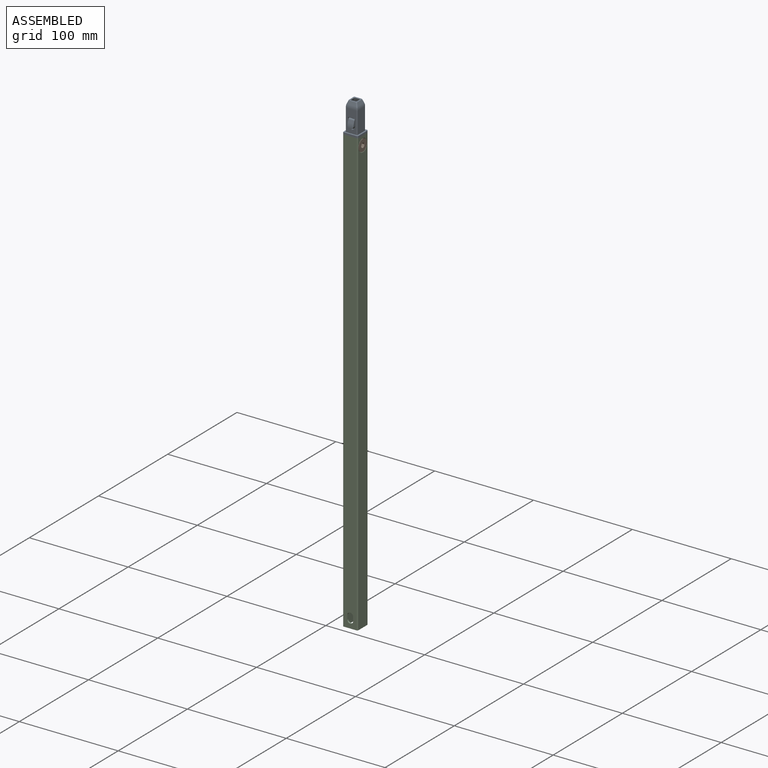
[diagram: assembled view]
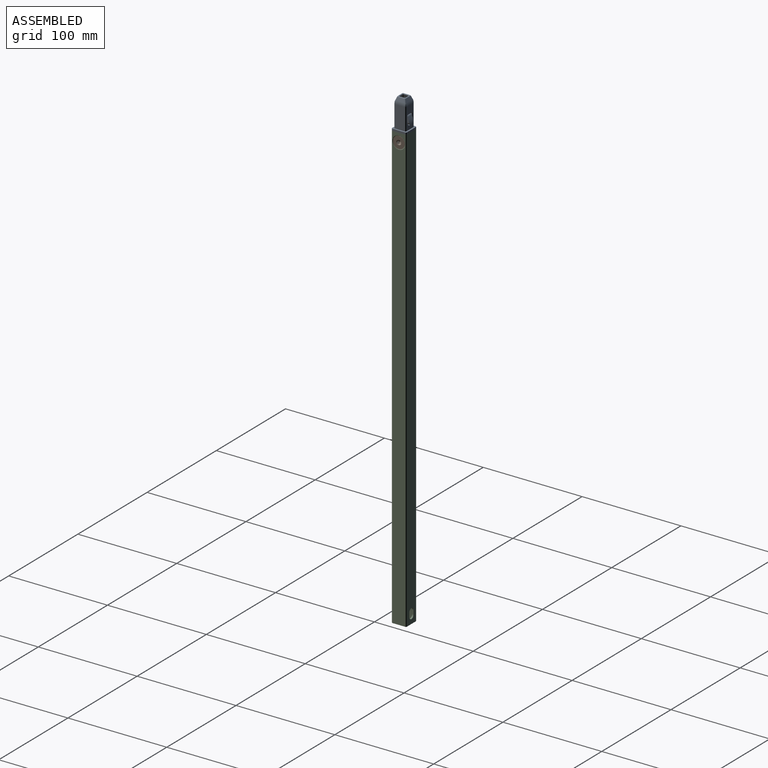
[diagram: assembled view, second angle]
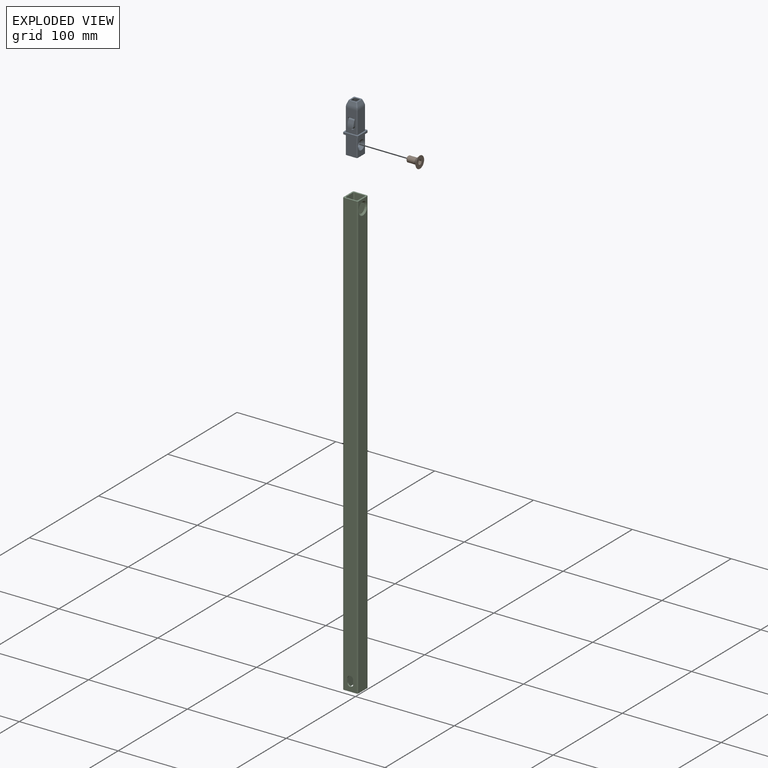
[diagram: exploded view]
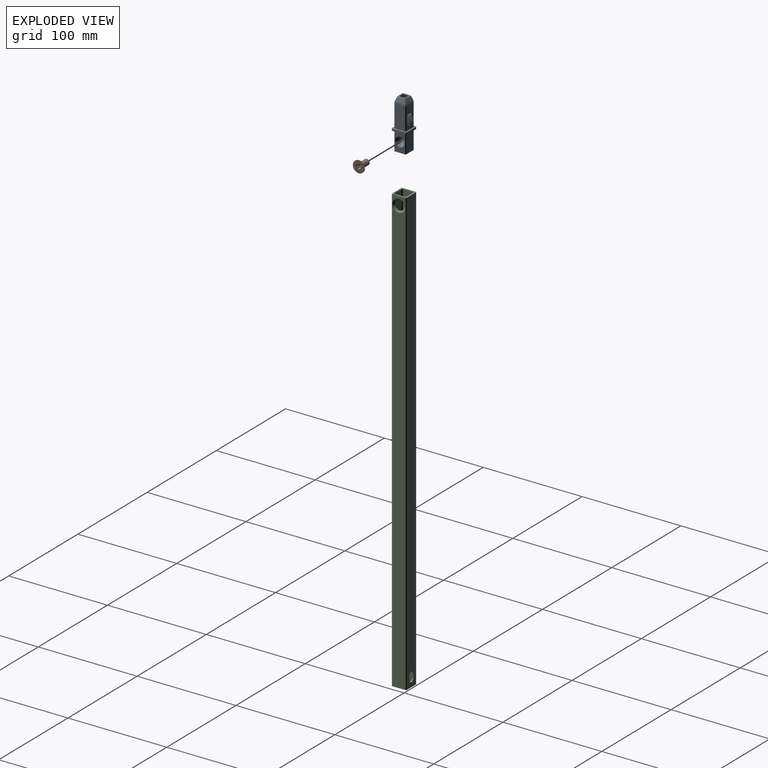
[diagram: exploded view, second angle]
ASSEMBLY  parts=3 mates=2
PART A: 331 faces, bbox 15x33.8x48.3 mm
  f0: plane 19.26x11.12mm, normal (0,-0.87,0.5), area 142.2mm2, adj f2,f7,f141,f230,f231,f232,f233,f234
  f1: plane 19.26x11.12mm, normal (0,0.87,-0.5), area 142.2mm2, adj f4,f5,f141,f224,f225,f226,f227,f228
  f2: cylinder r=1mm len=19.76mm, axis (0,0.5,0.87), area 34.9mm2, adj f0,f3,f141,f269
  f3: plane 24.26x19.78mm, normal (-1,0,0), area 222.4mm2, adj f2,f4,f141,f270
  f4: cylinder r=1mm len=19.76mm, axis (0,0.5,0.87), area 34.9mm2, adj f1,f3,f141,f272
  f5: cylinder r=1mm len=19.76mm, axis (0,0.5,0.87), area 34.9mm2, adj f1,f6,f141,f276
  f6: plane 24.26x19.78mm, normal (1,0,0), area 222.4mm2, adj f5,f7,f141,f275
  f7: cylinder r=1mm len=19.76mm, axis (0,0.5,0.87), area 34.9mm2, adj f0,f6,f141,f273
  f8: plane 7.8x5.8mm, normal (0,-0.87,0.5), area 7.8mm2, adj f48,f49,f126,f127,f128,f129,f130,f210
  f9: cone r=4.25mm half-angle=45deg, axis (1,0,0), area 10.2mm2, adj f10,f11,f13,f43
  f10: cylinder r=1mm len=39.47mm, axis (0,0.5,0.87), area 62.8mm2, adj f9,f11,f12,f20,f27,f30,f40,f42
  f11: plane 30.45x21.65mm, normal (-1,0,0), area 213.7mm2, adj f9,f10,f13,f266
  f12: plane 8.84x8.3mm, normal (-1,0,0), area 33mm2, adj f10,f13,f30,f42
  f13: cylinder r=1mm len=39.47mm, axis (0,0.5,0.87), area 62.8mm2, adj f9,f11,f12,f21,f28,f30,f40,f42
  f14: cylinder r=1mm len=39.47mm, axis (0,0.5,0.87), area 64.4mm2, adj f15,f16,f21,f28,f30,f41,f243,f244
  f15: plane 9.11x8.77mm, normal (1,0,0), area 36.2mm2, adj f14,f17,f30,f41
  f16: plane 30.42x21.61mm, normal (1,0,0), area 211.2mm2, adj f14,f17,f41,f262
  f17: cylinder r=1mm len=39.47mm, axis (0,0.5,0.87), area 64.4mm2, adj f15,f16,f20,f27,f30,f41,f253,f254
  f18: plane 16.45x10mm, normal (0,-0.87,0.5), area 190mm2, adj f22,f29,f30,f140
  f19: plane 16.45x10mm, normal (0,0.87,-0.5), area 190mm2, adj f24,f25,f30,f140
  f20: plane 8.95x7.1mm, normal (0,0.87,-0.5), area 70mm2, adj f10,f17,f248,f250,f252,f260
  f21: plane 8.95x7mm, normal (0,-0.87,0.5), area 68.9mm2, adj f13,f14,f238,f240,f242,f264
  f22: cylinder r=1mm len=16.95mm, axis (0,0.5,0.87), area 29.8mm2, adj f18,f23,f30,f140
  f23: plane 21.45x18.16mm, normal (-1,0,0), area 170.4mm2, adj f22,f24,f30,f38,f140
  f24: cylinder r=1mm len=16.95mm, axis (0,0.5,0.87), area 29.8mm2, adj f19,f23,f30,f140
  f25: cylinder r=1mm len=16.95mm, axis (0,0.5,0.87), area 29.8mm2, adj f19,f26,f30,f140
  f26: plane 21.45x18.16mm, normal (1,0,0), area 115.3mm2, adj f25,f29,f30,f39,f140
  f27: plane 23.64x13.65mm, normal (0,0.87,-0.5), area 178.3mm2, adj f10,f17,f30,f251
  f28: plane 23.64x13.65mm, normal (0,-0.87,0.5), area 178.3mm2, adj f13,f14,f30,f241
  f29: cylinder r=1mm len=16.95mm, axis (0,0.5,0.87), area 29.8mm2, adj f18,f26,f30,f140
  f30: plane 12x10.39mm, normal (0,-0.5,-0.87), area 63mm2, adj f10,f12,f13,f14,f15,f17,f18,f19
  f31: plane 5.17x3.46mm, normal (1,0,0), area 4.5mm2, adj f142,f145,f234,f255
  f32: plane 5.17x3.46mm, normal (-1,0,0), area 4.5mm2, adj f142,f144,f233,f247
  f33: plane 5x0.69mm, normal (0,-0.5,-0.87), area 4mm2, adj f144,f145,f230,f250
  f34: plane 5.17x3.46mm, normal (-1,0,0), area 4.5mm2, adj f143,f147,f228,f237
  f35: plane 5x0.69mm, normal (0,-0.5,-0.87), area 4mm2, adj f146,f147,f224,f240
  f36: plane 5.17x3.46mm, normal (1,0,0), area 4.5mm2, adj f143,f146,f227,f245
  f37: cylinder r=4.25mm len=8.5mm, axis (-1,0,0), area 160.9mm2, adj f41,f43,f156,f158,f160,f163,f165,f167
  f38: cylinder r=2.5mm len=9.63mm, axis (1,0,0), area 151.2mm2, adj f23,f39
  f39: cone r=2.5mm half-angle=45deg, axis (1,0,0), area 77.8mm2, adj f26,f38
  f40: cone r=4.25mm half-angle=45deg, axis (1,0,0), area 6.6mm2, adj f10,f13,f42,f43
  f41: torus R=5.25mm, axis (-1,0,0), area 34.4mm2, adj f14,f15,f16,f17,f37,f157,f159,f161
  f42: torus R=5.66mm, axis (-1,0,0), area 6.9mm2, adj f10,f12,f13,f40
  f43: torus R=5.25mm, axis (-1,0,0), area 21.2mm2, adj f9,f10,f13,f37,f40,f162,f164,f166
  f44: cylinder r=9.25mm len=5.8mm, axis (-1,0,0), area 25.6mm2, adj f45,f67,f99,f118,f124,f200,f214
  f45: cylinder r=18.53mm len=5.8mm, axis (-1,0,0), area 28.2mm2, adj f44,f46,f202,f216
  f46: cylinder r=0.5mm len=5.8mm, axis (-1,0,0), area 7.8mm2, adj f45,f47,f204,f218
  f47: cylinder r=18.53mm len=5.8mm, axis (-1,0,0), area 28.2mm2, adj f46,f48,f206,f220
  f48: cylinder r=9.25mm len=5.8mm, axis (-1,0,0), area 25.6mm2, adj f8,f47,f98,f125,f131,f208,f222
  f49: cylinder r=9.25mm len=5.8mm, axis (-1,0,0), area 33.6mm2, adj f8,f50,f211,f221
  f50: cylinder r=9.95mm len=5.8mm, axis (-1,0,0), area 15.5mm2, adj f49,f51,f209,f219
  f51: cylinder r=0.3mm len=5.8mm, axis (-1,0,0), area 4.2mm2, adj f50,f52,f207,f217
  f52: cylinder r=9.95mm len=5.8mm, axis (-1,0,0), area 15.5mm2, adj f51,f53,f205,f215
  f53: cylinder r=9.25mm len=5.8mm, axis (-1,0,0), area 33.6mm2, adj f52,f67,f203,f213
  f54: cylinder r=17.83mm len=5.8mm, axis (-1,0,0), area 27.2mm2, adj f55,f66,f180,f183
  f55: cylinder r=9.95mm len=5.8mm, axis (-1,0,0), area 23.9mm2, adj f54,f96,f178,f181
  f56: plane 5.8x1.83mm, normal (0,-0.66,0.75), area 14.2mm2, adj f72,f74,f172,f175
  f57: plane 3.15x0.4mm, normal (0,-0.87,0.5), area 1mm2, adj f74,f169
  f58: cylinder r=9.95mm len=6.19mm, axis (-1,0,0), area 34.2mm2, adj f59,f90,f95,f149,f150
  f59: cylinder r=9.25mm len=5.8mm, axis (-1,0,0), area 28.3mm2, adj f58,f91,f94,f158
  f60: cylinder r=9.25mm len=5.8mm, axis (-1,0,0), area 28.3mm2, adj f61,f88,f92,f165
  f61: cylinder r=9.95mm len=5.8mm, axis (-1,0,0), area 34.2mm2, adj f60,f89,f93,f153,f154
  f62: plane 3.15x0.4mm, normal (0,0.87,-0.5), area 1mm2, adj f75,f198
  f63: plane 5.8x2.4mm, normal (0,0.98,-0.2), area 14.2mm2, adj f73,f75,f192,f195
  f64: cylinder r=9.95mm len=5.8mm, axis (-1,0,0), area 23.9mm2, adj f65,f97,f186,f189
  f65: cylinder r=17.83mm len=5.8mm, axis (-1,0,0), area 27.2mm2, adj f64,f66,f184,f187
  f66: cylinder r=1.2mm len=5.8mm, axis (-1,0,0), area 18.7mm2, adj f54,f65,f182,f185
  f67: plane 7.8x5.8mm, normal (0,0.87,-0.5), area 7.8mm2, adj f44,f53,f119,f120,f121,f122,f123,f201
  f68: plane 26.04x15.65mm, normal (1,0,0), area 59mm2, adj f70,f71,f92,f93,f94,f95,f164,f170
  f69: plane 25.66x15.45mm, normal (-1,0,0), area 58.8mm2, adj f70,f71,f88,f89,f90,f91,f159,f173
  f70: cylinder r=3mm len=6mm, axis (0,-0.87,0.5), area 25.7mm2, adj f68,f69,f152,f153,f154,f155,f196,f198
  f71: cylinder r=3mm len=6mm, axis (0,-0.87,0.5), area 25.7mm2, adj f68,f69,f148,f149,f150,f151,f168,f169
  f72: cylinder r=2mm len=5.8mm, axis (1,0,0), area 10.9mm2, adj f56,f96,f174,f177
  f73: cylinder r=2mm len=5.8mm, axis (1,0,0), area 10.9mm2, adj f63,f97,f190,f193
  f74: cylinder r=15mm len=5.8mm, axis (-1,0,0), area 24.7mm2, adj f56,f57,f168,f170,f171,f173
  f75: cylinder r=15mm len=5.8mm, axis (-1,0,0), area 24.7mm2, adj f62,f63,f194,f196,f197,f199
  f76: plane 3.5x2.4mm, normal (0,-0.98,0.2), area 8.6mm2, adj f80,f81,f111,f115
  f77: plane 5.29x2.97mm, normal (-1,0,0), area 7.4mm2, adj f79,f114,f115,f116,f117,f129
  f78: plane 5.29x2.97mm, normal (1,0,0), area 7.4mm2, adj f79,f109,f110,f111,f112,f127
  f79: cylinder r=2.25mm len=4.5mm, axis (0,-0.87,0.5), area 15.8mm2, adj f77,f78,f113,f128
  f80: cylinder r=1.25mm len=3.5mm, axis (1,0,0), area 5mm2, adj f76,f98,f110,f116
  f81: cylinder r=14.25mm len=3.65mm, axis (-1,0,0), area 12.2mm2, adj f76,f112,f113,f114
  f82: cylinder r=14.25mm len=3.5mm, axis (-1,0,0), area 12.2mm2, adj f85,f103,f104,f105
  f83: cylinder r=1.25mm len=3.5mm, axis (1,0,0), area 5mm2, adj f85,f99,f101,f107
  f84: cylinder r=2.25mm len=4.5mm, axis (0,-0.87,0.5), area 15.8mm2, adj f86,f87,f104,f121
  f85: plane 3.5x1.83mm, normal (0,0.66,-0.75), area 8.6mm2, adj f82,f83,f102,f106
  f86: plane 4.34x4.34mm, normal (-1,0,0), area 7.4mm2, adj f84,f105,f106,f107,f108,f122
  f87: plane 4.34x4.34mm, normal (1,0,0), area 7.4mm2, adj f84,f100,f101,f102,f103,f120
  f88: torus R=9.35mm, axis (1,0,0), area 0.8mm2, adj f60,f69,f89,f161,f163
  f89: torus R=9.85mm, axis (1,0,0), area 1.2mm2, adj f61,f69,f88,f155
  f90: torus R=9.85mm, axis (1,0,0), area 1.2mm2, adj f58,f69,f91,f151
  f91: torus R=9.35mm, axis (1,0,0), area 0.8mm2, adj f59,f69,f90,f156,f157
  f92: torus R=9.35mm, axis (1,0,0), area 0.8mm2, adj f60,f68,f93,f166,f167
  f93: torus R=9.85mm, axis (1,0,0), area 1.2mm2, adj f61,f68,f92,f152
  f94: torus R=9.35mm, axis (1,0,0), area 0.8mm2, adj f59,f68,f95,f160,f162
  f95: torus R=9.85mm, axis (1,0,0), area 1.2mm2, adj f58,f68,f94,f148
  f96: cylinder r=1mm len=5.8mm, axis (1,0,0), area 6.9mm2, adj f55,f72,f176,f179
  f97: cylinder r=1mm len=5.8mm, axis (1,0,0), area 6.9mm2, adj f64,f73,f188,f191
  f98: cylinder r=1mm len=3.5mm, axis (1,0,0), area 5mm2, adj f48,f80,f109,f117
  f99: cylinder r=1mm len=3.5mm, axis (1,0,0), area 5mm2, adj f44,f83,f100,f108
  f100: torus R=1.5mm, axis (1,0,0), area 0.6mm2, adj f87,f99,f101,f118,f119
  f101: torus R=0.75mm, axis (1,0,0), area 1mm2, adj f83,f87,f100,f102
  f102: cylinder r=0.5mm len=2.16mm, axis (0,0.75,0.66), area 1.9mm2, adj f85,f87,f101,f103
  f103: torus R=13.75mm, axis (1,0,0), area 1.6mm2, adj f82,f87,f102,f104
  f104: bspline ~4.51x2.57mm, area 5.3mm2, adj f82,f84,f103,f105
  f105: torus R=13.75mm, axis (1,0,0), area 1.6mm2, adj f82,f86,f104,f106
  f106: cylinder r=0.5mm len=2.16mm, axis (0,-0.75,-0.66), area 1.9mm2, adj f85,f86,f105,f107
  f107: torus R=0.75mm, axis (1,0,0), area 1mm2, adj f83,f86,f106,f108
  f108: torus R=1.5mm, axis (1,0,0), area 0.6mm2, adj f86,f99,f107,f123,f124
  f109: torus R=1.5mm, axis (1,0,0), area 0.6mm2, adj f78,f98,f110,f125,f126
  f110: torus R=0.75mm, axis (1,0,0), area 1mm2, adj f78,f80,f109,f111
  f111: cylinder r=0.5mm len=2.5mm, axis (0,-0.2,-0.98), area 1.9mm2, adj f76,f78,f110,f112
  f112: torus R=13.75mm, axis (1,0,0), area 1.6mm2, adj f78,f81,f111,f113
  f113: bspline ~4.51x2.8mm, area 5.3mm2, adj f79,f81,f112,f114
  f114: torus R=13.75mm, axis (1,0,0), area 1.6mm2, adj f77,f81,f113,f115
  f115: cylinder r=0.5mm len=2.5mm, axis (0,0.2,0.98), area 1.9mm2, adj f76,f77,f114,f116
  f116: torus R=0.75mm, axis (1,0,0), area 1mm2, adj f77,f80,f115,f117
  f117: torus R=1.5mm, axis (1,0,0), area 0.6mm2, adj f77,f98,f116,f130,f131
  f118: bspline ~0.48x0.46mm, area 0mm2, adj f44,f100,f119
  f119: bspline ~1.1x1.07mm, area 0.7mm2, adj f67,f100,f118,f120
  f120: cylinder r=0.5mm len=4.43mm, axis (0,-0.5,-0.87), area 3.8mm2, adj f67,f87,f119,f121
  f121: torus R=2.75mm, axis (0,-0.87,0.5), area 6mm2, adj f67,f84,f120,f122
  f122: cylinder r=0.5mm len=4.43mm, axis (0,0.5,0.87), area 3.8mm2, adj f67,f86,f121,f123
  f123: bspline ~1.3x1.15mm, area 0.7mm2, adj f67,f108,f122,f124
  f124: bspline ~0.48x0.46mm, area 0mm2, adj f44,f108,f123
  f125: bspline ~0.61x0.48mm, area 0mm2, adj f48,f109,f126
  f126: bspline ~1.33x0.86mm, area 0.7mm2, adj f8,f109,f125,f127
  f127: cylinder r=0.5mm len=4.43mm, axis (0,0.5,0.87), area 3.8mm2, adj f8,f78,f126,f128
  f128: torus R=2.75mm, axis (0,-0.87,0.5), area 6mm2, adj f8,f79,f127,f129
  f129: cylinder r=0.5mm len=4.43mm, axis (0,-0.5,-0.87), area 3.8mm2, adj f8,f77,f128,f130
  f130: bspline ~1.46x0.89mm, area 0.7mm2, adj f8,f117,f129,f131
  f131: bspline ~0.61x0.48mm, area 0mm2, adj f48,f117,f130
  f132: cylinder r=1mm len=2.23mm, axis (0,0.5,0.87), area 3.1mm2, adj f133,f139,f140,f141
  f133: plane 12.26x8.23mm, normal (-1,0,0), area 26mm2, adj f132,f134,f140,f141
  f134: cylinder r=1mm len=2.23mm, axis (0,0.5,0.87), area 3.1mm2, adj f133,f135,f140,f141
  f135: plane 13x1.73mm, normal (0,0.87,-0.5), area 26mm2, adj f134,f136,f140,f141
  f136: cylinder r=1mm len=2.23mm, axis (0,0.5,0.87), area 3.1mm2, adj f135,f137,f140,f141
  f137: plane 12.26x8.23mm, normal (1,0,0), area 26mm2, adj f136,f138,f140,f141
  f138: cylinder r=1mm len=2.23mm, axis (0,0.5,0.87), area 3.1mm2, adj f137,f139,f140,f141
  f139: plane 13x1.73mm, normal (0,-0.87,0.5), area 26mm2, adj f132,f138,f140,f141
  f140: plane 15x12.99mm, normal (0,-0.5,-0.87), area 81mm2, adj f18,f19,f22,f23,f24,f25,f26,f29
  f141: plane 15x12.99mm, normal (0,0.5,0.87), area 81mm2, adj f0,f1,f2,f3,f4,f5,f6,f7
  f142: cylinder r=3.5mm len=7mm, axis (0,0.87,-0.5), area 8.8mm2, adj f31,f32,f235,f249,f251,f253
  f143: cylinder r=3.5mm len=7mm, axis (0,-0.87,0.5), area 8.8mm2, adj f34,f36,f229,f239,f241,f243
  f144: cylinder r=1mm len=1.27mm, axis (0,0.87,-0.5), area 1.3mm2, adj f32,f33,f231,f246,f248
  f145: cylinder r=1mm len=1.27mm, axis (0,-0.87,0.5), area 1.3mm2, adj f31,f33,f232,f252,f254
  f146: cylinder r=1mm len=1.27mm, axis (0,-0.87,0.5), area 1.3mm2, adj f35,f36,f225,f242,f244
  f147: cylinder r=1mm len=1.27mm, axis (0,0.87,-0.5), area 1.3mm2, adj f34,f35,f226,f236,f238
  f148: bspline ~2.42x2.18mm, area 1.2mm2, adj f71,f95,f149
  f149: bspline ~3.65x2.54mm, area 4.1mm2, adj f58,f71,f148,f150
  f150: bspline ~4.32x2.54mm, area 4.1mm2, adj f58,f71,f149,f151
  f151: bspline ~2.46x2.33mm, area 1.2mm2, adj f71,f90,f150
  f152: bspline ~2.89x1.45mm, area 1.2mm2, adj f70,f93,f153
  f153: bspline ~3.65x2.05mm, area 4.1mm2, adj f61,f70,f152,f154
  f154: bspline ~4.32x2.05mm, area 4.1mm2, adj f61,f70,f153,f155
  f155: bspline ~2.89x1.45mm, area 1.2mm2, adj f70,f89,f154
  f156: bspline ~1.2x0.93mm, area 0.4mm2, adj f37,f91,f157,f158
  f157: bspline ~1.09x0.9mm, area 0.3mm2, adj f41,f91,f156,f159
  f158: cylinder r=1mm len=5.8mm, axis (-1,0,0), area 8.1mm2, adj f37,f59,f156,f160
  f159: torus R=5.12mm, axis (1,0,0), area 0.6mm2, adj f41,f69,f157,f161
  f160: bspline ~1.17x0.78mm, area 0.1mm2, adj f37,f94,f158,f162
  f161: bspline ~1.24x0.6mm, area 0.3mm2, adj f41,f88,f159,f163
  f162: bspline ~1.18x0.94mm, area 0.2mm2, adj f43,f94,f160,f164
  f163: bspline ~1.34x1.03mm, area 0.4mm2, adj f37,f88,f161,f165
  f164: torus R=4.66mm, axis (1,0,0), area 0.2mm2, adj f43,f68,f162,f166
  f165: cylinder r=1mm len=5.8mm, axis (-1,0,0), area 8.1mm2, adj f37,f60,f163,f167
  f166: bspline ~1.28x0.69mm, area 0.3mm2, adj f43,f92,f164,f167
  f167: bspline ~1.3x0.61mm, area 0.1mm2, adj f37,f92,f165,f166
  f168: bspline ~2.94x2.11mm, area 0.5mm2, adj f71,f74,f169,f170
  f169: torus R=2.9mm, axis (0,-0.87,0.5), area 0.5mm2, adj f57,f71,f168,f171
  f170: torus R=14.9mm, axis (1,0,0), area 0.4mm2, adj f68,f74,f168,f172
  f171: bspline ~2.94x2.11mm, area 0.5mm2, adj f71,f74,f169,f173
  f172: cylinder r=0.1mm len=1.9mm, axis (0,0.75,0.66), area 0.4mm2, adj f56,f68,f170,f174
  f173: torus R=14.9mm, axis (1,0,0), area 0.4mm2, adj f69,f74,f171,f175
  f174: torus R=1.9mm, axis (1,0,0), area 0.3mm2, adj f68,f72,f172,f176
  f175: cylinder r=0.1mm len=1.9mm, axis (0,-0.75,-0.66), area 0.4mm2, adj f56,f69,f173,f177
  f176: torus R=1.1mm, axis (1,0,0), area 0.2mm2, adj f68,f96,f174,f178
  f177: torus R=1.9mm, axis (1,0,0), area 0.3mm2, adj f69,f72,f175,f179
  f178: torus R=9.85mm, axis (1,0,0), area 0.6mm2, adj f55,f68,f176,f180
  f179: torus R=1.1mm, axis (1,0,0), area 0.2mm2, adj f69,f96,f177,f181
  f180: torus R=17.93mm, axis (1,0,0), area 0.7mm2, adj f54,f68,f178,f182
  f181: torus R=9.85mm, axis (1,0,0), area 0.6mm2, adj f55,f69,f179,f183
  f182: torus R=1.1mm, axis (1,0,0), area 0.5mm2, adj f66,f68,f180,f184
  f183: torus R=17.93mm, axis (1,0,0), area 0.7mm2, adj f54,f69,f181,f185
  f184: torus R=17.93mm, axis (1,0,0), area 0.7mm2, adj f65,f68,f182,f186
  f185: torus R=1.1mm, axis (1,0,0), area 0.5mm2, adj f66,f69,f183,f187
  f186: torus R=9.85mm, axis (1,0,0), area 0.6mm2, adj f64,f68,f184,f188
  f187: torus R=17.93mm, axis (1,0,0), area 0.7mm2, adj f65,f69,f185,f189
  f188: torus R=1.1mm, axis (1,0,0), area 0.2mm2, adj f68,f97,f186,f190
  f189: torus R=9.85mm, axis (1,0,0), area 0.6mm2, adj f64,f69,f187,f191
  f190: torus R=1.9mm, axis (1,0,0), area 0.3mm2, adj f68,f73,f188,f192
  f191: torus R=1.1mm, axis (1,0,0), area 0.2mm2, adj f69,f97,f189,f193
  f192: cylinder r=0.1mm len=2.42mm, axis (0,-0.2,-0.98), area 0.4mm2, adj f63,f68,f190,f194
  f193: torus R=1.9mm, axis (1,0,0), area 0.3mm2, adj f69,f73,f191,f195
  f194: torus R=14.9mm, axis (1,0,0), area 0.4mm2, adj f68,f75,f192,f196
  f195: cylinder r=0.1mm len=2.42mm, axis (0,0.2,0.98), area 0.4mm2, adj f63,f69,f193,f197
  f196: bspline ~3.24x2mm, area 0.5mm2, adj f70,f75,f194,f198
  f197: torus R=14.9mm, axis (1,0,0), area 0.4mm2, adj f69,f75,f195,f199
  f198: torus R=2.9mm, axis (0,-0.87,0.5), area 0.5mm2, adj f62,f70,f196,f199
  f199: bspline ~3.24x2mm, area 0.5mm2, adj f70,f75,f197,f198
  f200: torus R=9.35mm, axis (1,0,0), area 0.7mm2, adj f44,f68,f201,f202
  f201: cylinder r=0.1mm len=7.84mm, axis (0,-0.5,-0.87), area 1.4mm2, adj f67,f68,f200,f203
  f202: torus R=18.43mm, axis (1,0,0), area 0.8mm2, adj f45,f68,f200,f204
  f203: torus R=9.35mm, axis (1,0,0), area 0.9mm2, adj f53,f68,f201,f205
  f204: torus R=0.6mm, axis (1,0,0), area 0.2mm2, adj f46,f68,f202,f206
  f205: torus R=9.85mm, axis (1,0,0), area 0.4mm2, adj f52,f68,f203,f207
  f206: torus R=18.43mm, axis (1,0,0), area 0.8mm2, adj f47,f68,f204,f208
  f207: torus R=0.4mm, axis (1,0,0), area 0.1mm2, adj f51,f68,f205,f209
  f208: torus R=9.35mm, axis (1,0,0), area 0.7mm2, adj f48,f68,f206,f210
  f209: torus R=9.85mm, axis (1,0,0), area 0.4mm2, adj f50,f68,f207,f211
  f210: cylinder r=0.1mm len=7.84mm, axis (0,0.5,0.87), area 1.4mm2, adj f8,f68,f208,f211
  f211: torus R=9.35mm, axis (1,0,0), area 0.9mm2, adj f49,f68,f209,f210
  f212: cylinder r=0.1mm len=7.84mm, axis (0,0.5,0.87), area 1.4mm2, adj f67,f69,f213,f214
  f213: torus R=9.35mm, axis (1,0,0), area 0.9mm2, adj f53,f69,f212,f215
  f214: torus R=9.35mm, axis (1,0,0), area 0.7mm2, adj f44,f69,f212,f216
  f215: torus R=9.85mm, axis (1,0,0), area 0.4mm2, adj f52,f69,f213,f217
  f216: torus R=18.43mm, axis (1,0,0), area 0.8mm2, adj f45,f69,f214,f218
  f217: torus R=0.4mm, axis (1,0,0), area 0.1mm2, adj f51,f69,f215,f219
  f218: torus R=0.6mm, axis (1,0,0), area 0.2mm2, adj f46,f69,f216,f220
  f219: torus R=9.85mm, axis (1,0,0), area 0.4mm2, adj f50,f69,f217,f221
  f220: torus R=18.43mm, axis (1,0,0), area 0.8mm2, adj f47,f69,f218,f222
  f221: torus R=9.35mm, axis (1,0,0), area 0.9mm2, adj f49,f69,f219,f223
  f222: torus R=9.35mm, axis (1,0,0), area 0.7mm2, adj f48,f69,f220,f223
  f223: cylinder r=0.1mm len=7.84mm, axis (0,-0.5,-0.87), area 1.4mm2, adj f8,f69,f221,f222
  f224: cylinder r=0.5mm len=5mm, axis (-1,0,0), area 3.9mm2, adj f1,f35,f225,f226
  f225: torus R=1.5mm, axis (0,0.87,-0.5), area 1.5mm2, adj f1,f146,f224,f227
  f226: torus R=1.5mm, axis (0,0.87,-0.5), area 1.5mm2, adj f1,f147,f224,f228
  f227: cylinder r=0.5mm len=5.01mm, axis (0,-0.5,-0.87), area 4.3mm2, adj f1,f36,f225,f229
  f228: cylinder r=0.5mm len=5.01mm, axis (0,0.5,0.87), area 4.3mm2, adj f1,f34,f226,f229
  f229: torus R=4mm, axis (0,0.87,-0.5), area 9.1mm2, adj f1,f143,f227,f228
  f230: cylinder r=0.5mm len=5mm, axis (-1,0,0), area 3.9mm2, adj f0,f33,f231,f232
  f231: torus R=1.5mm, axis (0,0.87,-0.5), area 1.5mm2, adj f0,f144,f230,f233
  f232: torus R=1.5mm, axis (0,0.87,-0.5), area 1.5mm2, adj f0,f145,f230,f234
  f233: cylinder r=0.5mm len=5.01mm, axis (0,0.5,0.87), area 4.3mm2, adj f0,f32,f231,f235
  f234: cylinder r=0.5mm len=5.01mm, axis (0,-0.5,-0.87), area 4.3mm2, adj f0,f31,f232,f235
  f235: torus R=4mm, axis (0,0.87,-0.5), area 9.1mm2, adj f0,f142,f233,f234
  f236: bspline ~0.87x0.57mm, area 0.2mm2, adj f13,f147,f237,f238
  f237: cylinder r=0.2mm len=4.86mm, axis (0,0.5,0.87), area 1.5mm2, adj f13,f34,f236,f239
  f238: torus R=1.2mm, axis (0,0.87,-0.5), area 0.3mm2, adj f21,f147,f236,f240
  f239: bspline ~1.64x1.11mm, area 0.3mm2, adj f13,f143,f237,f241
  f240: cylinder r=0.2mm len=5mm, axis (1,0,0), area 1.6mm2, adj f21,f35,f238,f242
  f241: torus R=3.7mm, axis (0,0.87,-0.5), area 2.8mm2, adj f28,f143,f239,f243
  f242: torus R=1.2mm, axis (0,0.87,-0.5), area 0.3mm2, adj f21,f146,f240,f244
  f243: bspline ~2.11x1.36mm, area 0.3mm2, adj f14,f143,f241,f245
  f244: bspline ~0.87x0.57mm, area 0.2mm2, adj f14,f146,f242,f245
  f245: cylinder r=0.2mm len=4.86mm, axis (0,0.5,0.87), area 1.5mm2, adj f14,f36,f243,f244
  f246: bspline ~0.8x0.61mm, area 0.2mm2, adj f10,f144,f247,f248
  f247: cylinder r=0.2mm len=4.86mm, axis (0,0.5,0.87), area 1.5mm2, adj f10,f32,f246,f249
  f248: torus R=1.2mm, axis (0,0.87,-0.5), area 0.3mm2, adj f20,f144,f246,f250
  f249: bspline ~1.68x1.07mm, area 0.3mm2, adj f10,f142,f247,f251
  f250: cylinder r=0.2mm len=5mm, axis (-1,0,0), area 1.6mm2, adj f20,f33,f248,f252
  f251: torus R=3.7mm, axis (0,0.87,-0.5), area 2.8mm2, adj f27,f142,f249,f253
  f252: torus R=1.2mm, axis (0,0.87,-0.5), area 0.3mm2, adj f20,f145,f250,f254
  f253: bspline ~1.9x1.2mm, area 0.3mm2, adj f17,f142,f251,f255
  f254: bspline ~0.8x0.61mm, area 0.2mm2, adj f17,f145,f252,f255
  f255: cylinder r=0.2mm len=4.86mm, axis (0,0.5,0.87), area 1.5mm2, adj f17,f31,f253,f254
  f256: plane 8.91x2.46mm, normal (0,-0.64,0.77), area 25.1mm2, adj f271,f277,f280,f297
  f257: plane 8.28x6.52mm, normal (0.94,0.17,0.3), area 25.1mm2, adj f275,f277,f278,f300
  f258: plane 8.91x3.16mm, normal (0,0.98,-0.17), area 25.1mm2, adj f274,f278,f279,f296
  f259: plane 8.28x6.52mm, normal (-0.94,0.17,0.3), area 25.1mm2, adj f270,f279,f280,f293
  f260: plane 7.12x3.53mm, normal (0,0.64,-0.77), area 25.5mm2, adj f20,f261,f267,f305
  f261: cylinder r=1mm len=4.34mm, axis (0.32,0.72,0.61), area 7.1mm2, adj f17,f260,f262,f303
  f262: plane 6.96x6.52mm, normal (0.94,-0.17,-0.3), area 25mm2, adj f16,f261,f263,f301
  f263: cylinder r=1mm len=5.01mm, axis (0.32,0.16,0.93), area 7.1mm2, adj f14,f262,f264,f302
  f264: plane 7.12x4.54mm, normal (0,-0.98,0.17), area 25mm2, adj f21,f263,f265,f304
  f265: cylinder r=1mm len=5.01mm, axis (-0.32,0.16,0.93), area 7.1mm2, adj f13,f264,f266,f306
  f266: plane 6.96x6.52mm, normal (-0.94,-0.17,-0.3), area 25.6mm2, adj f11,f265,f267,f308
  f267: cylinder r=1mm len=4.34mm, axis (-0.32,0.72,0.61), area 7.1mm2, adj f10,f260,f266,f307
  f268: plane 7.66x6.63mm, normal (0,0.5,0.87), area 14.1mm2, adj f293,f294,f295,f296,f297,f298,f299,f300
  f269: revolved ~2.4x2.04mm, area 3.4mm2, adj f2,f270,f271,f282
  f270: cylinder r=10mm len=10.37mm, axis (0,-0.87,0.5), area 34.3mm2, adj f3,f259,f269,f272,f281,f286
  f271: cylinder r=10mm len=10mm, axis (1,0,0), area 34.3mm2, adj f0,f256,f269,f273,f283,f290
  f272: revolved ~2.53x1.8mm, area 3.4mm2, adj f4,f270,f274,f285
  f273: revolved ~2.4x2.04mm, area 3.4mm2, adj f7,f271,f275,f291
  f274: cylinder r=10mm len=10mm, axis (-1,0,0), area 34.3mm2, adj f1,f258,f272,f276,f284,f289
  f275: cylinder r=10mm len=10.37mm, axis (0,0.87,-0.5), area 34.3mm2, adj f6,f257,f273,f276,f287,f292
  f276: revolved ~2.53x1.8mm, area 3.4mm2, adj f5,f274,f275,f288
  f277: cylinder r=1mm len=4.11mm, axis (0.32,-0.72,-0.61), area 5.9mm2, adj f256,f257,f290,f291,f292,f299
  f278: cylinder r=1mm len=4.71mm, axis (0.32,-0.16,-0.93), area 5.9mm2, adj f257,f258,f287,f288,f289,f298
  f279: cylinder r=1mm len=4.71mm, axis (-0.32,-0.16,-0.93), area 5.9mm2, adj f258,f259,f284,f285,f286,f294
  f280: cylinder r=1mm len=4.11mm, axis (-0.32,-0.72,-0.61), area 5.9mm2, adj f256,f259,f281,f282,f283,f295
  f281: bspline ~1.69x0.89mm, area 0.2mm2, adj f270,f280,f282
  f282: bspline ~0.75x0.69mm, area 0.1mm2, adj f269,f280,f281,f283
  f283: bspline ~1.22x1.08mm, area 0.2mm2, adj f271,f280,f282
  f284: bspline ~1.46x1.22mm, area 0.2mm2, adj f274,f279,f285
  f285: bspline ~0.79x0.7mm, area 0.1mm2, adj f272,f279,f284,f286
  f286: bspline ~1.71x0.53mm, area 0.2mm2, adj f270,f279,f285
  f287: bspline ~1.71x0.53mm, area 0.2mm2, adj f275,f278,f288
  f288: bspline ~0.75x0.72mm, area 0.1mm2, adj f276,f278,f287,f289
  f289: bspline ~1.46x1.22mm, area 0.2mm2, adj f274,f278,f288
  f290: bspline ~1.22x1.08mm, area 0.2mm2, adj f271,f277,f291
  f291: bspline ~0.79x0.66mm, area 0.1mm2, adj f273,f277,f290,f292
  f292: bspline ~1.69x0.89mm, area 0.2mm2, adj f275,f277,f291
  f293: cylinder r=0.5mm len=5.98mm, axis (0,0.87,-0.5), area 4.1mm2, adj f259,f268,f294,f295
  f294: bspline ~0.96x0.84mm, area 0.6mm2, adj f268,f279,f293,f296
  f295: bspline ~0.99x0.96mm, area 0.6mm2, adj f268,f280,f293,f297
  f296: cylinder r=0.5mm len=6.72mm, axis (1,0,0), area 4.1mm2, adj f258,f268,f294,f298
  f297: cylinder r=0.5mm len=6.72mm, axis (1,0,0), area 4.1mm2, adj f256,f268,f295,f299
  f298: bspline ~0.96x0.84mm, area 0.6mm2, adj f268,f278,f296,f300
  f299: bspline ~0.99x0.96mm, area 0.6mm2, adj f268,f277,f297,f300
  f300: cylinder r=0.5mm len=5.98mm, axis (0,0.87,-0.5), area 4.1mm2, adj f257,f268,f298,f299
  f301: cylinder r=0.5mm len=3.77mm, axis (0,0.87,-0.5), area 3.8mm2, adj f262,f268,f302,f303
  f302: bspline ~1.56x1.41mm, area 1.7mm2, adj f263,f268,f301,f304
  f303: bspline ~1.41x1.29mm, area 1.7mm2, adj f261,f268,f301,f305
  f304: cylinder r=0.5mm len=3.97mm, axis (1,0,0), area 3.8mm2, adj f264,f268,f302,f306
  f305: cylinder r=0.5mm len=3.97mm, axis (1,0,0), area 3.8mm2, adj f260,f268,f303,f307
  f306: bspline ~1.56x1.41mm, area 1.7mm2, adj f265,f268,f304,f308
  f307: bspline ~1.41x1.29mm, area 1.7mm2, adj f267,f268,f305,f308
  f308: cylinder r=0.5mm len=3.77mm, axis (0,0.87,-0.5), area 3.8mm2, adj f266,f268,f306,f307
  f309: plane 0.75x0.15mm, normal (0,0.5,0.87), area 0mm2, adj f310,f313,f318
  f310: plane 10.04x5.9mm, normal (-1,0,0), area 1.9mm2, adj f309,f311,f313,f318
  f311: plane 0.75x0.15mm, normal (0,-0.5,-0.87), area 0mm2, adj f310,f313,f318
  f312: plane 1.75x1.52mm, normal (0,0.5,0.87), area 0.6mm2, adj f313,f315,f317,f318
  f313: plane 37.67x21.75mm, normal (0,0.87,-0.5), area 56.6mm2, adj f309,f310,f311,f312,f314,f315,f318
  f314: plane 1.75x1.52mm, normal (0,-0.5,-0.87), area 0.6mm2, adj f313,f315,f316,f318
  f315: cylinder r=0.25mm len=37.8mm, axis (0,0.5,0.87), area 16.9mm2, adj f312,f313,f314,f316,f317,f319
  f316: plane 28.28x17.62mm, normal (1,0,0), area 46.9mm2, adj f314,f315,f318,f319
  f317: plane 7.37x3.97mm, normal (1,0,0), area 9.4mm2, adj f312,f315,f318,f319
  f318: cylinder r=1.75mm len=38.55mm, axis (0,0.5,0.87), area 106mm2, adj f309,f310,f311,f312,f313,f314,f316,f317
  f319: torus R=5.25mm, axis (-1,0,0), area 5.1mm2, adj f315,f316,f317,f318
  f320: cylinder r=0.25mm len=37.8mm, axis (0,0.5,0.87), area 16.9mm2, adj f321,f322,f325,f326,f329,f330
  f321: plane 29.03x16.47mm, normal (1,0,0), area 46.9mm2, adj f320,f324,f326,f330
  f322: plane 6.62x5.12mm, normal (1,0,0), area 9.4mm2, adj f320,f324,f325,f330
  f323: plane 10.04x5.9mm, normal (-1,0,0), area 1.9mm2, adj f324,f327,f328,f329
  f324: cylinder r=1.75mm len=38.55mm, axis (0,0.5,0.87), area 106mm2, adj f321,f322,f323,f325,f326,f327,f328,f329
  f325: plane 1.75x1.52mm, normal (0,0.5,0.87), area 0.6mm2, adj f320,f322,f324,f329
  f326: plane 1.75x1.52mm, normal (0,-0.5,-0.87), area 0.6mm2, adj f320,f321,f324,f329
  f327: plane 0.75x0.15mm, normal (0,0.5,0.87), area 0mm2, adj f323,f324,f329
  f328: plane 0.75x0.15mm, normal (0,-0.5,-0.87), area 0mm2, adj f323,f324,f329
  f329: plane 37.67x21.75mm, normal (0,-0.87,0.5), area 56.6mm2, adj f320,f323,f324,f325,f326,f327,f328
  f330: torus R=5.25mm, axis (-1,0,0), area 5.1mm2, adj f320,f321,f322,f324
PART B: 21 faces, bbox 12x12x12 mm
  f0: cone r=2mm half-angle=45deg, axis (-1,0,0), area 5.8mm2, adj f1,f4,f5,f6,f7,f8,f9
  f1: plane 12x12mm, normal (-1,0,0), area 95.2mm2, adj f0,f2
  f2: cylinder r=6mm len=12mm, axis (1,0,0), area 11.3mm2, adj f1,f3
  f3: cone r=6mm half-angle=45deg, axis (-1,0,0), area 117.6mm2, adj f2,f17
  f4: plane 2.42x2.31mm, normal (0,0,-1), area 5.1mm2, adj f0,f5,f9,f12,f13
  f5: plane 2.42x2mm, normal (0,0.87,-0.5), area 5.1mm2, adj f0,f4,f6,f13,f14
  f6: plane 2.42x2mm, normal (0,0.87,0.5), area 5.1mm2, adj f0,f5,f7,f14,f15
  f7: plane 2.42x2.31mm, normal (0,0,1), area 5.1mm2, adj f0,f6,f8,f10,f15
  f8: plane 2.42x2mm, normal (0,-0.87,0.5), area 5.1mm2, adj f0,f7,f9,f10,f11
  f9: plane 2.42x2mm, normal (0,-0.87,-0.5), area 5.1mm2, adj f0,f4,f8,f11,f12
  f10: plane 1.73x1mm, normal (-1,0,0), area 0.2mm2, adj f7,f8,f16
  f11: plane 2x0.58mm, normal (-1,0,0), area 0.2mm2, adj f8,f9,f16
  f12: plane 1.73x1mm, normal (-1,0,0), area 0.2mm2, adj f4,f9,f16
  f13: plane 1.73x1mm, normal (-1,0,0), area 0.2mm2, adj f4,f5,f16
  f14: plane 2x0.58mm, normal (-1,0,0), area 0.2mm2, adj f5,f6,f16
  f15: plane 1.73x1mm, normal (-1,0,0), area 0.2mm2, adj f6,f7,f16
  f16: cone r=2mm half-angle=60deg, axis (-1,0,0), area 14.5mm2, adj f10,f11,f12,f13,f14,f15
  f17: torus R=3.3mm, axis (1,0,0), area 4.5mm2, adj f3,f20
  f18: plane 4.77x4.77mm, normal (1,0,0), area 17.9mm2, adj f19
  f19: cone r=3mm half-angle=45deg, axis (-1,0,0), area 14.7mm2, adj f18,f20
  f20: cylinder r=3mm len=7.96mm, axis (1,0,0), area 150.1mm2, adj f17,f19
PART C: 27 faces, bbox 15x238x397.2 mm
  f0: plane 389.71x225mm, normal (0,0.87,-0.5), area 5797.7mm2, adj f5,f6,f16,f17,f19,f20,f21,f22
  f1: plane 389.71x225mm, normal (0,-0.87,0.5), area 5797.7mm2, adj f8,f15,f16,f17,f23,f24,f25,f26
  f2: plane 389.71x225mm, normal (0,0.87,-0.5), area 4447.7mm2, adj f10,f11,f16,f17,f23,f24,f25,f26
  f3: plane 389.71x225mm, normal (0,-0.87,0.5), area 4447.7mm2, adj f13,f14,f16,f17,f19,f20,f21,f22
  f4: plane 396.21x236.26mm, normal (-1,0,0), area 5850mm2, adj f5,f15,f16,f17
  f5: cylinder r=1mm len=390.21mm, axis (0,0.5,0.87), area 706.9mm2, adj f0,f4,f16,f17
  f6: cylinder r=1mm len=390.21mm, axis (0,0.5,0.87), area 706.9mm2, adj f0,f7,f16,f17
  f7: plane 396.21x236.26mm, normal (1,0,0), area 5721.3mm2, adj f6,f8,f16,f17,f18
  f8: cylinder r=1mm len=390.21mm, axis (0,0.5,0.87), area 706.9mm2, adj f1,f7,f16,f17
  f9: plane 394.71x233.66mm, normal (1,0,0), area 4500mm2, adj f10,f14,f16,f17
  f10: cylinder r=1mm len=390.21mm, axis (0,0.5,0.87), area 706.9mm2, adj f2,f9,f16,f17
  f11: cylinder r=1mm len=390.21mm, axis (0,0.5,0.87), area 706.9mm2, adj f2,f12,f16,f17
  f12: plane 394.71x233.66mm, normal (-1,0,0), area 4424.6mm2, adj f11,f13,f16,f17,f18
  f13: cylinder r=1mm len=390.21mm, axis (0,0.5,0.87), area 706.9mm2, adj f3,f12,f16,f17
  f14: cylinder r=1mm len=390.21mm, axis (0,0.5,0.87), area 706.9mm2, adj f3,f9,f16,f17
  f15: cylinder r=1mm len=390.21mm, axis (0,0.5,0.87), area 706.9mm2, adj f1,f4,f16,f17
  f16: plane 15x12.99mm, normal (0,-0.5,-0.87), area 81mm2, adj f0,f1,f2,f3,f4,f5,f6,f7
  f17: plane 15x12.99mm, normal (0,0.5,0.87), area 81mm2, adj f0,f1,f2,f3,f4,f5,f6,f7
  f18: cone r=3.3mm half-angle=45deg, axis (1,0,0), area 75.3mm2, adj f7,f12
  f19: cylinder r=3mm len=6mm, axis (0,-0.87,0.5), area 14.1mm2, adj f0,f3,f20,f22
  f20: plane 4.21x3.3mm, normal (1,0,0), area 6mm2, adj f0,f3,f19,f21
  f21: cylinder r=3mm len=6mm, axis (0,-0.87,0.5), area 14.1mm2, adj f0,f3,f20,f22
  f22: plane 4.21x3.3mm, normal (-1,0,0), area 6mm2, adj f0,f3,f19,f21
  f23: plane 4.21x3.3mm, normal (-1,0,0), area 6mm2, adj f1,f2,f24,f26
  f24: cylinder r=3mm len=6mm, axis (0,-0.87,0.5), area 14.1mm2, adj f1,f2,f23,f25
  f25: plane 4.21x3.3mm, normal (1,0,0), area 6mm2, adj f1,f2,f24,f26
  f26: cylinder r=3mm len=6mm, axis (0,-0.87,0.5), area 14.1mm2, adj f1,f2,f23,f25
PLACE A rot(axis=(1,0,0),30deg) t=(0,33.15,62.59)mm
PLACE B rot(axis=(0,-1,0),180deg) t=(7.5,0,-9)mm
PLACE C rot(axis=(1,0,0),30deg) t=(0,33.15,17.59)mm
MATE fastened B.f3 <-> C.f18  axis (1,0,0) through (7.5,0,-9)mm
MATE fastened A.f140 <-> C.f17  axis (0,0,-1) through (0,0,0)mm
